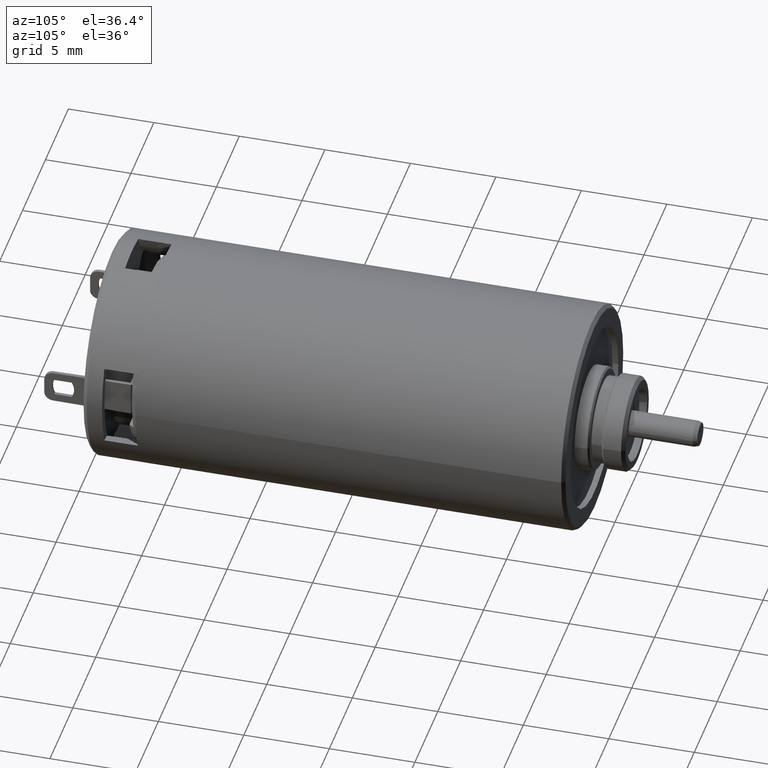
[diagram: clean part render]
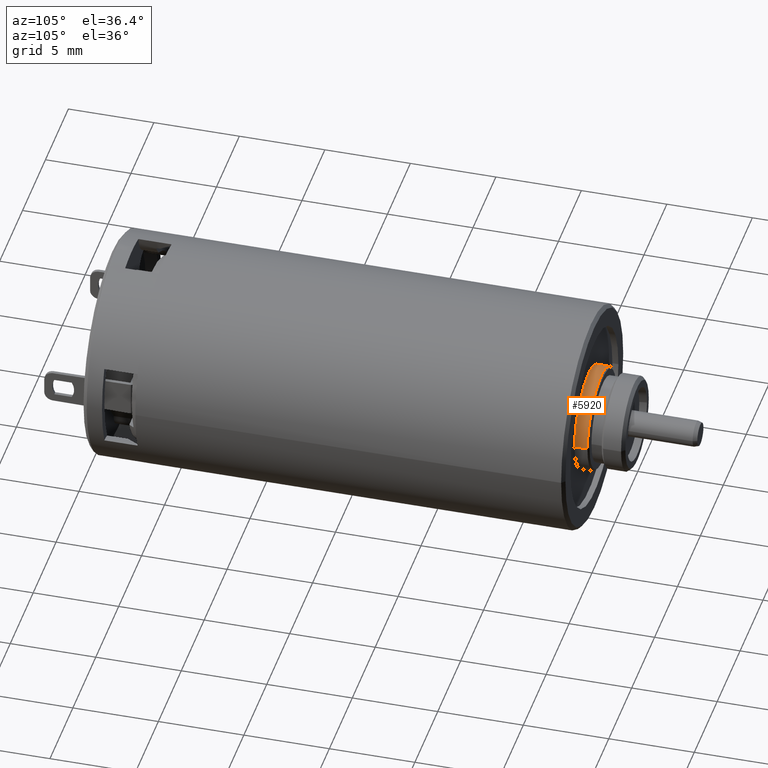
[diagram: same view with one face highlighted and labeled with its STEP entity id]
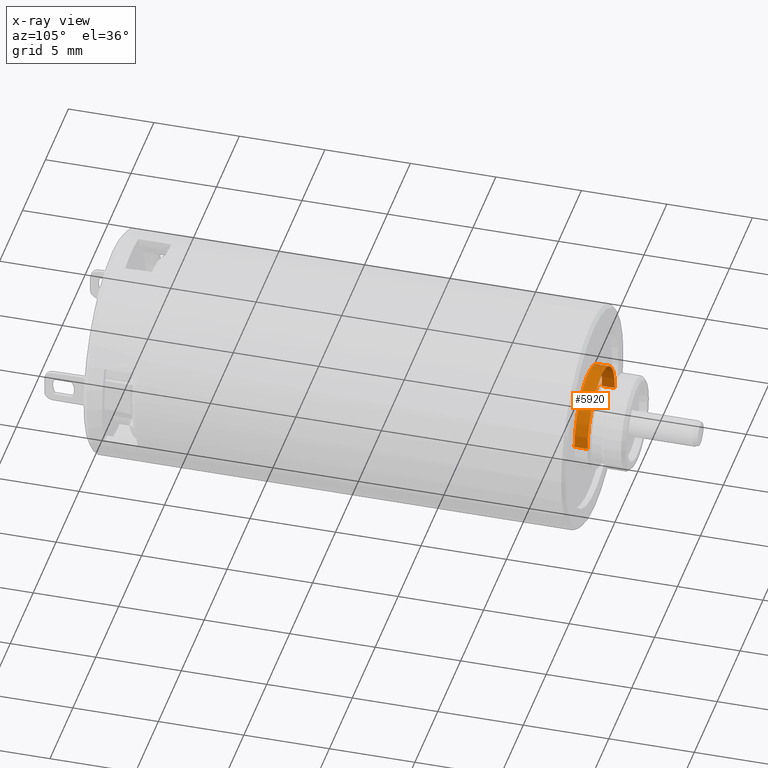
[diagram: x-ray of the same camera — body ghosted, the highlighted face saturated]
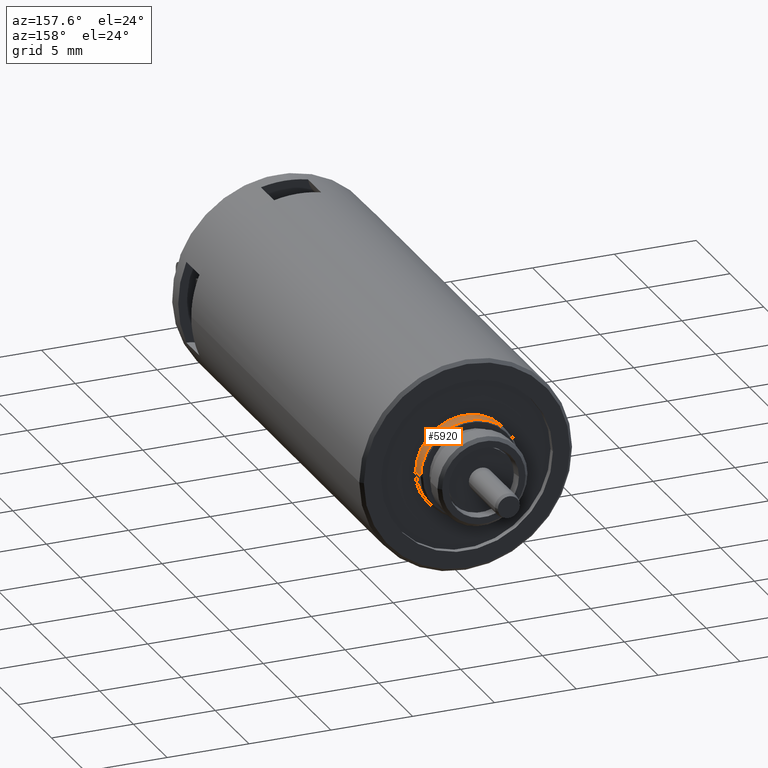
[diagram: same view with one face highlighted and labeled with its STEP entity id]
A machine part, auxiliary view. The second image highlights one B-rep face of the part: STEP entity #5920.
The next image is the same camera in x-ray: the body ghosted, the highlighted face saturated — about 0% of this face is hidden behind the body in this view.
A second angle (auxiliary view) of the same face is appended — the face is thin or edge-on in the first view.
In plain terms, the highlighted cylindrical surface (partial cylindrical patch) has radius 3 mm, axis along (0, 1, 0).
Its self-contained STEP definition (entity closure, byte-faithful):
#2221=CARTESIAN_POINT('',(0.E0,-6.55E0,0.E0));
#2222=DIRECTION('',(0.E0,1.E0,0.E0));
#2223=DIRECTION('',(-1.E0,0.E0,0.E0));
#2224=AXIS2_PLACEMENT_3D('',#2221,#2222,#2223);
#2231=CARTESIAN_POINT('',(0.E0,-5.8E0,0.E0));
#2232=DIRECTION('',(0.E0,1.E0,0.E0));
#2233=DIRECTION('',(-1.E0,0.E0,0.E0));
#2234=AXIS2_PLACEMENT_3D('',#2231,#2232,#2233);
#2236=DIRECTION('',(0.E0,-1.E0,0.E0));
#2237=VECTOR('',#2236,7.5E-1);
#2238=CARTESIAN_POINT('',(-3.E0,-5.8E0,0.E0));
#2239=LINE('',#2238,#2237);
#2240=DIRECTION('',(0.E0,-1.E0,0.E0));
#2241=VECTOR('',#2240,7.5E-1);
#2242=CARTESIAN_POINT('',(3.E0,-5.8E0,0.E0));
#2243=LINE('',#2242,#2241);
#2459=CARTESIAN_POINT('',(-3.E0,-5.8E0,0.E0));
#2460=CARTESIAN_POINT('',(-3.E0,-6.55E0,0.E0));
#2461=VERTEX_POINT('',#2459);
#2462=VERTEX_POINT('',#2460);
#2475=CARTESIAN_POINT('',(3.E0,-5.8E0,0.E0));
#2476=CARTESIAN_POINT('',(3.E0,-6.55E0,0.E0));
#2477=VERTEX_POINT('',#2475);
#2478=VERTEX_POINT('',#2476);
#5906=CARTESIAN_POINT('',(0.E0,-3.2865E1,0.E0));
#5907=DIRECTION('',(0.E0,1.E0,0.E0));
#5908=DIRECTION('',(1.E0,0.E0,0.E0));
#5909=AXIS2_PLACEMENT_3D('',#5906,#5907,#5908);
#5910=CYLINDRICAL_SURFACE('',#5909,3.E0);
#5912=ORIENTED_EDGE('',*,*,#5911,.F.);
#5914=ORIENTED_EDGE('',*,*,#5913,.T.);
#5916=ORIENTED_EDGE('',*,*,#5915,.T.);
#5917=ORIENTED_EDGE('',*,*,#5899,.F.);
#5918=EDGE_LOOP('',(#5912,#5914,#5916,#5917));
#5919=FACE_OUTER_BOUND('',#5918,.F.);
#5920=ADVANCED_FACE('',(#5919),#5910,.T.);
#2225=CIRCLE('',#2224,3.E0);
#2235=CIRCLE('',#2234,3.E0);
#5899=EDGE_CURVE('',#2462,#2478,#2225,.T.);
#5911=EDGE_CURVE('',#2461,#2462,#2239,.T.);
#5913=EDGE_CURVE('',#2461,#2477,#2235,.T.);
#5915=EDGE_CURVE('',#2477,#2478,#2243,.T.);